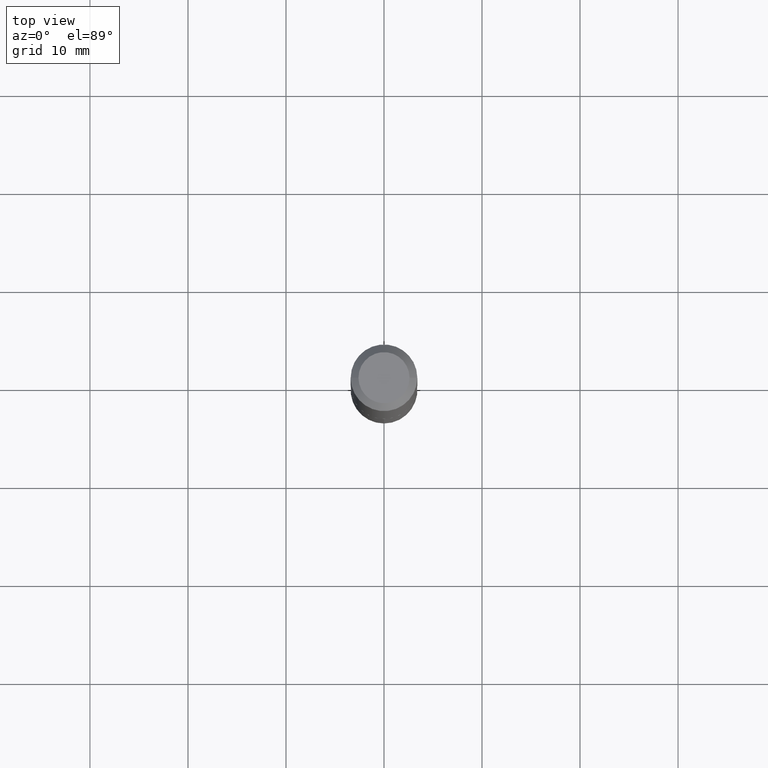
[diagram: clean part render]
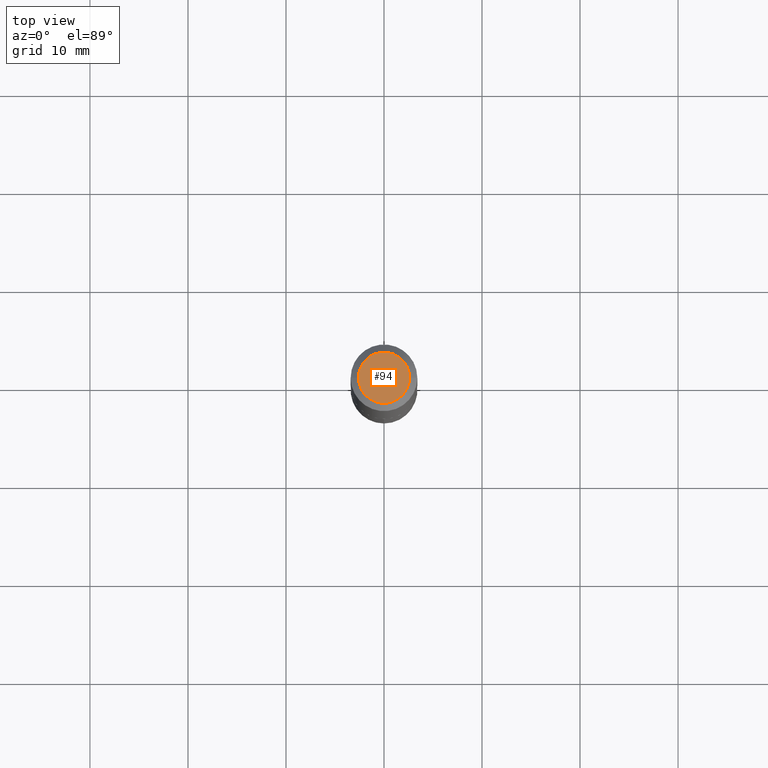
[diagram: same view with one face highlighted and labeled with its STEP entity id]
A machine part, top view. The second image highlights one B-rep face of the part: STEP entity #94.
In plain terms, the highlighted planar face has unit normal (0, -0, -1).
Its self-contained STEP definition (entity closure, byte-faithful):
#9 = EDGE_LOOP ( 'NONE', ( #171, #363 ) ) ;
#27 = DIRECTION ( 'NONE',  ( 1.000000000000000000, -6.982962677686267499E-15, 4.876182450887182109E-29 ) ) ;
#29 = DIRECTION ( 'NONE',  ( 2.438088387897960049E-29, -3.491481338843145188E-15, -1.000000000000000000 ) ) ;
#49 = AXIS2_PLACEMENT_3D ( 'NONE', #61, #172, #27 ) ;
#61 = CARTESIAN_POINT ( 'NONE',  ( -1.766952972086489110E-47, 2.522740553079194936E-33, 7.225416114969328827E-19 ) ) ;
#63 = FACE_OUTER_BOUND ( 'NONE', #9, .T. ) ;
#88 = DIRECTION ( 'NONE',  ( -2.445468806185136597E-29, 3.491481338843145583E-15, 1.000000000000000000 ) ) ;
#89 = CIRCLE ( 'NONE', #332, 0.1025999999999999829 ) ;
#94 = ADVANCED_FACE ( 'NONE', ( #63 ), #142, .F. ) ;
#98 = CARTESIAN_POINT ( 'NONE',  ( -8.834764860432445552E-48, 1.261370276539597468E-33, 3.612708057484664413E-19 ) ) ;
#126 = CIRCLE ( 'NONE', #49, 0.1025999999999999829 ) ;
#142 = PLANE ( 'NONE',  #239 ) ;
#171 = ORIENTED_EDGE ( 'NONE', *, *, #223, .T. ) ;
#172 = DIRECTION ( 'NONE',  ( -2.445468806185136597E-29, 3.491481338843145583E-15, 1.000000000000000000 ) ) ;
#209 = DIRECTION ( 'NONE',  ( -1.000000000000000000, 6.982962677686265922E-15, -4.876176775795935793E-29 ) ) ;
#222 = VERTEX_POINT ( 'NONE', #384 ) ;
#223 = EDGE_CURVE ( 'NONE', #222, #260, #126, .T. ) ;
#228 = DIRECTION ( 'NONE',  ( 1.000000000000000000, -6.982962677686267499E-15, 4.876182450887182109E-29 ) ) ;
#239 = AXIS2_PLACEMENT_3D ( 'NONE', #98, #29, #209 ) ;
#260 = VERTEX_POINT ( 'NONE', #375 ) ;
#263 = CARTESIAN_POINT ( 'NONE',  ( -1.766952972086489110E-47, 2.522740553079194936E-33, 7.225416114969328827E-19 ) ) ;
#332 = AXIS2_PLACEMENT_3D ( 'NONE', #263, #88, #228 ) ;
#363 = ORIENTED_EDGE ( 'NONE', *, *, #367, .T. ) ;
#367 = EDGE_CURVE ( 'NONE', #260, #222, #89, .T. ) ;
#375 = CARTESIAN_POINT ( 'NONE',  ( 0.1025999999999999829, -8.656367717059636643E-16, 7.225416115024643461E-19 ) ) ;
#384 = CARTESIAN_POINT ( 'NONE',  ( -0.1025999999999999829, 7.710063666500343655E-16, 7.225416114917319089E-19 ) ) ;